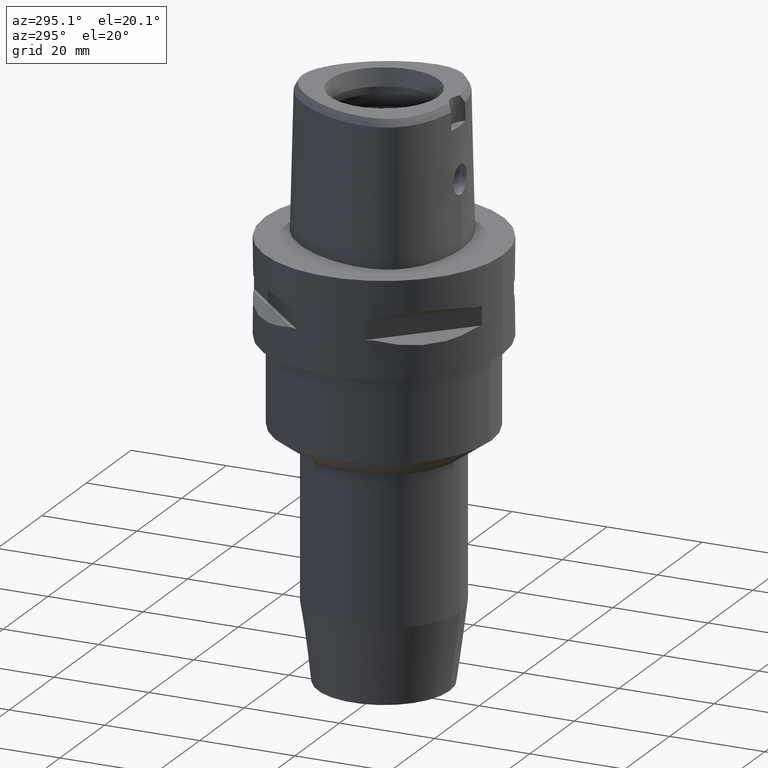
[diagram: clean part render]
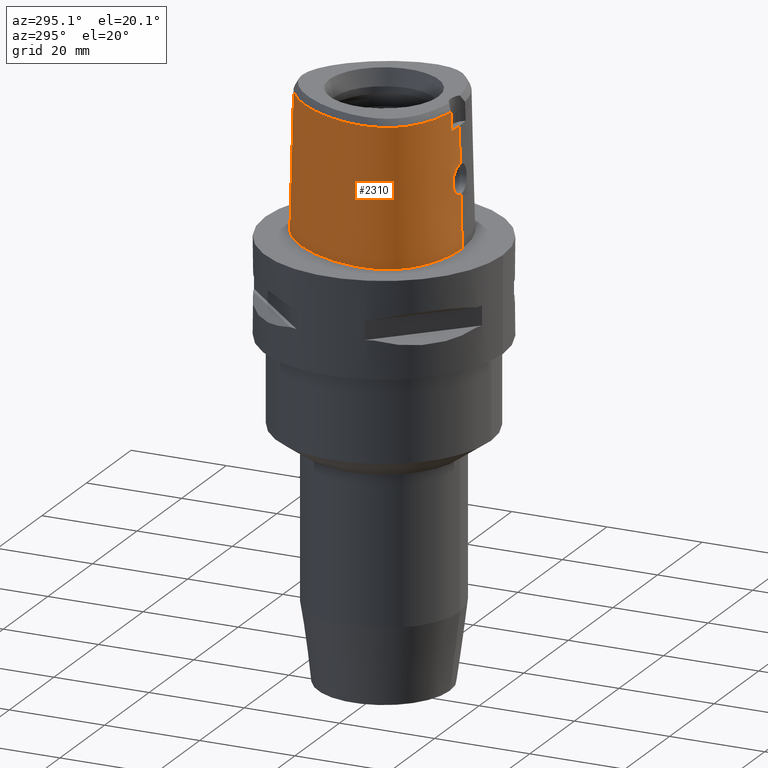
[diagram: same view with one face highlighted and labeled with its STEP entity id]
A machine part, auxiliary view. The second image highlights one B-rep face of the part: STEP entity #2310.
In plain terms, the highlighted face is a freeform B-spline surface patch.
Its self-contained STEP definition (entity closure, byte-faithful):
#185=CARTESIAN_POINT('',(-3.168920966623E0,-1.555911077539E1,2.852071192347E1));
#186=CARTESIAN_POINT('',(-3.884018424515E0,-1.547576349617E1,2.852068042717E1));
#187=CARTESIAN_POINT('',(-5.247695189909E0,-1.525826336469E1,2.852072903404E1));
#188=CARTESIAN_POINT('',(-7.068919529175E0,-1.481516736492E1,2.852071237294E1));
#189=CARTESIAN_POINT('',(-8.613929883140E0,-1.431004507675E1,2.852073019963E1));
#190=CARTESIAN_POINT('',(-9.995356613935E0,-1.373902700220E1,2.852071186279E1));
#191=CARTESIAN_POINT('',(-1.124982998274E1,-1.309688046516E1,2.852071937654E1));
#192=CARTESIAN_POINT('',(-1.238711608372E1,-1.238104996002E1,2.852071750255E1));
#193=CARTESIAN_POINT('',(-1.336108389170E1,-1.162936731246E1,2.852072164498E1));
#194=CARTESIAN_POINT('',(-1.417450314764E1,-1.086425323022E1,2.852072209935E1));
#195=CARTESIAN_POINT('',(-1.485394147480E1,-1.008281603057E1,2.852069333345E1));
#196=CARTESIAN_POINT('',(-1.541186317733E1,-9.290473508141E0,2.852074843830E1));
#197=CARTESIAN_POINT('',(-1.587337708806E1,-8.462915439459E0,2.852071991258E1));
#198=CARTESIAN_POINT('',(-1.626140134066E1,-7.557337614524E0,2.852071163513E1));
#199=CARTESIAN_POINT('',(-1.657667771845E1,-6.548498503859E0,2.852071897347E1));
#200=CARTESIAN_POINT('',(-1.680798800989E1,-5.428019071697E0,2.852071891157E1));
#201=CARTESIAN_POINT('',(-1.694253977910E1,-4.169586378050E0,2.852072184503E1));
#202=CARTESIAN_POINT('',(-1.695949206263E1,-2.802998814675E0,2.852071756393E1));
#203=CARTESIAN_POINT('',(-1.685344435E1,-1.375161839891E0,2.852071128356E1));
#204=CARTESIAN_POINT('',(-1.662096442905E1,1.267079546153E-1,2.852072422836E1));
#205=CARTESIAN_POINT('',(-1.624049462060E1,1.762577795572E0,2.852072177717E1));
#206=CARTESIAN_POINT('',(-1.564670362716E1,3.634253181313E0,2.852069903337E1));
#207=CARTESIAN_POINT('',(-1.483751327191E1,5.603489300116E0,2.852072652030E1));
#208=CARTESIAN_POINT('',(-1.384825157337E1,7.550865350083E0,2.852068894743E1));
#209=CARTESIAN_POINT('',(-1.270048005534E1,9.425038874084E0,2.852072872519E1));
#210=CARTESIAN_POINT('',(-1.143486269483E1,1.116436229673E1,2.852071245700E1));
#211=CARTESIAN_POINT('',(-1.010132644102E1,1.271225842705E1,2.852072030872E1));
#212=CARTESIAN_POINT('',(-8.842378725687E0,1.395492710839E1,2.852071211598E1));
#213=CARTESIAN_POINT('',(-7.654868319508E0,1.496335772709E1,2.852072067069E1));
#214=CARTESIAN_POINT('',(-6.463517638644E0,1.582517546606E1,2.852071712933E1));
#215=CARTESIAN_POINT('',(-5.272808361515E0,1.654168821671E1,2.852072805240E1));
#216=CARTESIAN_POINT('',(-4.105550930552E0,1.710690949129E1,2.852071405181E1));
#217=CARTESIAN_POINT('',(-2.992312216150E0,1.751912247566E1,2.852072610469E1));
#218=CARTESIAN_POINT('',(-1.943886603984E0,1.779364421749E1,2.852074324146E1));
#219=CARTESIAN_POINT('',(-9.440104920872E-1,1.794938959237E1,2.852060108563E1));
#220=CARTESIAN_POINT('',(-3.160365891633E-1,1.798202997910E1,2.852071728568E1));
#221=CARTESIAN_POINT('',(-3.033118856553E-11,1.798202997910E1,
2.852071728569E1));
#233=CARTESIAN_POINT('',(-3.168920966623E0,-1.555911077539E1,2.852071192347E1));
#234=CARTESIAN_POINT('',(-3.176474039100E0,-1.556891666509E1,2.809611645937E1));
#235=CARTESIAN_POINT('',(-3.191280249308E0,-1.558832444513E1,2.724696144168E1));
#236=CARTESIAN_POINT('',(-3.213330813519E0,-1.561778410051E1,2.597339362925E1));
#237=CARTESIAN_POINT('',(-3.227943724850E0,-1.563768160294E1,2.512445079602E1));
#238=CARTESIAN_POINT('',(-3.235096612069E0,-1.564751802487E1,2.47E1));
#243=DIRECTION('',(-2.653059685059E-8,-2.499217453618E-2,-9.996876468237E-1));
#244=VECTOR('',#243,7.652390309446E0);
#245=CARTESIAN_POINT('',(2.030224829794E-7,-1.583752876601E1,2.470000006103E1));
#246=LINE('',#245,#244);
#250=CARTESIAN_POINT('',(0.E0,-1.602877864024E1,1.705E1));
#251=CARTESIAN_POINT('',(-2.659945477313E-1,-1.602877864024E1,1.705E1));
#252=CARTESIAN_POINT('',(-7.981539054079E-1,-1.602276557434E1,
1.697998778210E1));
#253=CARTESIAN_POINT('',(-1.542337742672E0,-1.599859727103E1,1.667189267474E1));
#254=CARTESIAN_POINT('',(-2.182298091955E0,-1.596711682406E1,1.618082016301E1));
#255=CARTESIAN_POINT('',(-2.673120543223E0,-1.593921850387E1,1.554028257757E1));
#256=CARTESIAN_POINT('',(-2.980687782776E0,-1.592573160843E1,1.479556193386E1));
#257=CARTESIAN_POINT('',(-3.084822898489E0,-1.593407648873E1,1.399796112571E1));
#258=CARTESIAN_POINT('',(-2.980017946408E0,-1.596586743653E1,1.320269542640E1));
#259=CARTESIAN_POINT('',(-2.672701220911E0,-1.601665099738E1,1.245917485553E1));
#260=CARTESIAN_POINT('',(-2.182455128889E0,-1.607648409626E1,1.181929354118E1));
#261=CARTESIAN_POINT('',(-1.541258646605E0,-1.613247596370E1,1.132732424473E1));
#262=CARTESIAN_POINT('',(-7.963106898855E-1,-1.617186122197E1,
1.101956686934E1));
#263=CARTESIAN_POINT('',(-2.651805195319E-1,-1.618126839359E1,1.095E1));
#264=CARTESIAN_POINT('',(-2.337332731629E-12,-1.618126839359E1,1.095E1));
#269=DIRECTION('',(-1.501671840209E-12,-2.499051295372E-2,-9.996876883619E-1));
#270=VECTOR('',#269,1.095342088082E1);
#271=CARTESIAN_POINT('',(-2.337332731629E-12,-1.618126839359E1,1.095E1));
#272=LINE('',#271,#270);
#334=CARTESIAN_POINT('',(7.755985120876E-11,1.869499999998E1,
1.702341971092E-13));
#335=CARTESIAN_POINT('',(-3.295759186931E-1,1.869499999998E1,
1.702341971092E-13));
#336=CARTESIAN_POINT('',(-1.002941795035E0,1.866091233063E1,
-7.900596583005E-14));
#337=CARTESIAN_POINT('',(-2.051732925927E0,1.849989913349E1,
2.116958474140E-14));
#338=CARTESIAN_POINT('',(-3.151016817687E0,1.821705721996E1,0.E0));
#339=CARTESIAN_POINT('',(-4.305903382544E0,1.779667629778E1,0.E0));
#340=CARTESIAN_POINT('',(-5.520827674724E0,1.721944707481E1,0.E0));
#341=CARTESIAN_POINT('',(-6.795867983990E0,1.646356234537E1,0.E0));
#342=CARTESIAN_POINT('',(-8.124582525850E0,1.550731834414E1,0.E0));
#343=CARTESIAN_POINT('',(-9.491675783515E0,1.433284227771E1,0.E0));
#344=CARTESIAN_POINT('',(-1.086945255546E1,1.293333260558E1,0.E0));
#345=CARTESIAN_POINT('',(-1.221944110055E1,1.131788308487E1,0.E0));
#346=CARTESIAN_POINT('',(-1.349253657379E1,9.519855402023E0,0.E0));
#347=CARTESIAN_POINT('',(-1.463965089053E1,7.592770024477E0,0.E0));
#348=CARTESIAN_POINT('',(-1.562233731693E1,5.598375856198E0,0.E0));
#349=CARTESIAN_POINT('',(-1.641389016506E1,3.606034768388E0,0.E0));
#350=CARTESIAN_POINT('',(-1.700401205855E1,1.679814926123E0,0.E0));
#351=CARTESIAN_POINT('',(-1.739956074894E1,-1.352982755759E-1,0.E0));
#352=CARTESIAN_POINT('',(-1.761806726740E1,-1.812956980727E0,0.E0));
#353=CARTESIAN_POINT('',(-1.768210655685E1,-3.344559877090E0,0.E0));
#354=CARTESIAN_POINT('',(-1.761432762350E1,-4.731965011588E0,0.E0));
#355=CARTESIAN_POINT('',(-1.743477761552E1,-5.984854138534E0,0.E0));
#356=CARTESIAN_POINT('',(-1.715975078674E1,-7.115992938261E0,0.E0));
#357=CARTESIAN_POINT('',(-1.679976177308E1,-8.141029809616E0,0.E0));
#358=CARTESIAN_POINT('',(-1.636704456147E1,-9.064438463957E0,0.E0));
#359=CARTESIAN_POINT('',(-1.585200386670E1,-9.922103224333E0,0.E0));
#360=CARTESIAN_POINT('',(-1.523087197253E1,-1.075232462852E1,0.E0));
#361=CARTESIAN_POINT('',(-1.447948051682E1,-1.157113099391E1,0.E0));
#362=CARTESIAN_POINT('',(-1.358925530666E1,-1.236773986121E1,0.E0));
#363=CARTESIAN_POINT('',(-1.253889987658E1,-1.314117755696E1,0.E0));
#364=CARTESIAN_POINT('',(-1.130992361527E1,-1.388138756268E1,0.E0));
#365=CARTESIAN_POINT('',(-9.884823482977E0,-1.457412199330E1,0.E0));
#366=CARTESIAN_POINT('',(-8.253027961528E0,-1.519886051434E1,0.E0));
#367=CARTESIAN_POINT('',(-6.415740149371E0,-1.572979209410E1,0.E0));
#368=CARTESIAN_POINT('',(-4.395375053772E0,-1.613808320054E1,
2.131685141787E-14));
#369=CARTESIAN_POINT('',(-2.229510005853E0,-1.639614206733E1,
-7.955557254887E-14));
#370=CARTESIAN_POINT('',(-7.522639795559E-1,-1.6455E1,1.714184350021E-13));
#371=CARTESIAN_POINT('',(-1.878577642231E-11,-1.6455E1,1.714184350021E-13));
#1033=DIRECTION('',(3.781719199653E-12,2.499051285786E-2,-9.996876883643E-1));
#1034=VECTOR('',#1033,2.852962742029E1);
#1035=CARTESIAN_POINT('',(-3.033118856553E-11,1.798202997910E1,
2.852071728569E1));
#1036=LINE('',#1035,#1034);
#1050=CARTESIAN_POINT('',(2.030224829794E-7,-1.583752876601E1,
2.470000006103E1));
#1051=CARTESIAN_POINT('',(-3.604657533404E-1,-1.583752876587E1,
2.470000006103E1));
#1052=CARTESIAN_POINT('',(-1.080736565087E0,-1.582371258234E1,
2.469999997152E1));
#1053=CARTESIAN_POINT('',(-2.160152508818E0,-1.576019554973E1,
2.470000000814E1));
#1054=CARTESIAN_POINT('',(-2.877122210813E0,-1.568999562894E1,2.47E1));
#1055=CARTESIAN_POINT('',(-3.235096612069E0,-1.564751802487E1,2.47E1));
#1531=CARTESIAN_POINT('',(-3.235121119989E0,-1.564755630482E1,2.47E1));
#1532=VERTEX_POINT('',#1531);
#1533=VERTEX_POINT('',#233);
#1534=CARTESIAN_POINT('',(-3.033118856553E-11,1.798202997910E1,
2.852071728569E1));
#1535=VERTEX_POINT('',#1534);
#1536=VERTEX_POINT('',#334);
#1537=VERTEX_POINT('',#371);
#1538=VERTEX_POINT('',#1050);
#1539=CARTESIAN_POINT('',(0.E0,-1.602877864024E1,1.705E1));
#1540=VERTEX_POINT('',#1539);
#1541=VERTEX_POINT('',#264);
#2197=CARTESIAN_POINT('',(5.756361491499E-1,1.869183960019E1,
-5.704147011234E-1));
#2198=CARTESIAN_POINT('',(5.606135746986E-1,1.844514041257E1,9.316773451682E0));
#2199=CARTESIAN_POINT('',(5.455910002473E-1,1.819844122495E1,1.920396160449E1));
#2200=CARTESIAN_POINT('',(5.305684257960E-1,1.795174203734E1,2.909114975729E1));
#2201=CARTESIAN_POINT('',(3.838142946343E-1,1.870350312524E1,
-5.704147011234E-1));
#2202=CARTESIAN_POINT('',(3.738602555951E-1,1.845648975998E1,9.316773451682E0));
#2203=CARTESIAN_POINT('',(3.639062165559E-1,1.820947639473E1,1.920396160449E1));
#2204=CARTESIAN_POINT('',(3.539521775167E-1,1.796246302947E1,2.909114975729E1));
#2205=CARTESIAN_POINT('',(-4.893119563665E-1,1.872969240792E1,
-5.704147011234E-1));
#2206=CARTESIAN_POINT('',(-4.764648007791E-1,1.848199781702E1,
9.316773451682E0));
#2207=CARTESIAN_POINT('',(-4.636176451918E-1,1.823430322612E1,
1.920396160449E1));
#2208=CARTESIAN_POINT('',(-4.507704896044E-1,1.798660863521E1,
2.909114975729E1));
#2209=CARTESIAN_POINT('',(-2.043508293078E0,1.856419796995E1,
-5.704147011234E-1));
#2210=CARTESIAN_POINT('',(-1.992618745946E0,1.832080815735E1,9.316773451682E0));
#2211=CARTESIAN_POINT('',(-1.941729198814E0,1.807741834474E1,1.920396160449E1));
#2212=CARTESIAN_POINT('',(-1.890839651682E0,1.783402853214E1,2.909114975729E1));
#2213=CARTESIAN_POINT('',(-4.735056264676E0,1.774784407941E1,
-5.704147011234E-1));
#2214=CARTESIAN_POINT('',(-4.628819261772E0,1.752182795300E1,9.316773451682E0));
#2215=CARTESIAN_POINT('',(-4.522582258867E0,1.729581182660E1,1.920396160449E1));
#2216=CARTESIAN_POINT('',(-4.416345255963E0,1.706979570019E1,2.909114975729E1));
#2217=CARTESIAN_POINT('',(-7.976721801682E0,1.584201698617E1,
-5.704147011234E-1));
#2218=CARTESIAN_POINT('',(-7.822764752431E0,1.564591005915E1,9.316773451682E0));
#2219=CARTESIAN_POINT('',(-7.668807703181E0,1.544980313212E1,1.920396160449E1));
#2220=CARTESIAN_POINT('',(-7.514850653931E0,1.525369620510E1,2.909114975729E1));
#2221=CARTESIAN_POINT('',(-1.147659488512E1,1.246143684855E1,
-5.704147011234E-1));
#2222=CARTESIAN_POINT('',(-1.128662493375E1,1.230111480698E1,9.316773451682E0));
#2223=CARTESIAN_POINT('',(-1.109665498237E1,1.214079276541E1,1.920396160449E1));
#2224=CARTESIAN_POINT('',(-1.090668503100E1,1.198047072383E1,2.909114975729E1));
#2225=CARTESIAN_POINT('',(-1.439249255229E1,8.309508948750E0,
-5.704147011234E-1));
#2226=CARTESIAN_POINT('',(-1.417736239213E1,8.185312170404E0,9.316773451682E0));
#2227=CARTESIAN_POINT('',(-1.396223223196E1,8.061115392059E0,1.920396160449E1));
#2228=CARTESIAN_POINT('',(-1.374710207180E1,7.936918613713E0,2.909114975729E1));
#2229=CARTESIAN_POINT('',(-1.653021708581E1,3.708305584516E0,
-5.704147011234E-1));
#2230=CARTESIAN_POINT('',(-1.629641056024E1,3.623925452902E0,9.316773451682E0));
#2231=CARTESIAN_POINT('',(-1.606260403466E1,3.539545321289E0,1.920396160449E1));
#2232=CARTESIAN_POINT('',(-1.582879750909E1,3.455165189675E0,2.909114975729E1));
#2233=CARTESIAN_POINT('',(-1.751166498553E1,-2.260900528543E-1,
-5.704147011234E-1));
#2234=CARTESIAN_POINT('',(-1.726695536966E1,-2.694874700460E-1,
9.316773451682E0));
#2235=CARTESIAN_POINT('',(-1.702224575379E1,-3.128848872377E-1,
1.920396160449E1));
#2236=CARTESIAN_POINT('',(-1.677753613792E1,-3.562823044293E-1,
2.909114975729E1));
#2237=CARTESIAN_POINT('',(-1.772574106021E1,-3.269125760294E0,
-5.704147011234E-1));
#2238=CARTESIAN_POINT('',(-1.747781018046E1,-3.270737581873E0,
9.316773451682E0));
#2239=CARTESIAN_POINT('',(-1.722987930071E1,-3.272349403451E0,
1.920396160449E1));
#2240=CARTESIAN_POINT('',(-1.698194842096E1,-3.273961225030E0,
2.909114975729E1));
#2241=CARTESIAN_POINT('',(-1.757791639726E1,-5.458025465920E0,
-5.704147011234E-1));
#2242=CARTESIAN_POINT('',(-1.733218228642E1,-5.422849681645E0,
9.316773451682E0));
#2243=CARTESIAN_POINT('',(-1.708644817558E1,-5.387673897370E0,
1.920396160449E1));
#2244=CARTESIAN_POINT('',(-1.684071406474E1,-5.352498113096E0,
2.909114975729E1));
#2245=CARTESIAN_POINT('',(-1.717866842938E1,-7.169980044632E0,
-5.704147011234E-1));
#2246=CARTESIAN_POINT('',(-1.694089129548E1,-7.099401458502E0,
9.316773451682E0));
#2247=CARTESIAN_POINT('',(-1.670311416158E1,-7.028822872372E0,
1.920396160449E1));
#2248=CARTESIAN_POINT('',(-1.646533702768E1,-6.958244286242E0,
2.909114975729E1));
#2249=CARTESIAN_POINT('',(-1.668217932131E1,-8.451606616761E0,
-5.704147011234E-1));
#2250=CARTESIAN_POINT('',(-1.645596372282E1,-8.350972134583E0,
9.316773451682E0));
#2251=CARTESIAN_POINT('',(-1.622974812434E1,-8.250337652406E0,
1.920396160449E1));
#2252=CARTESIAN_POINT('',(-1.600353252586E1,-8.149703170229E0,
2.909114975729E1));
#2253=CARTESIAN_POINT('',(-1.621839714800E1,-9.363695959238E0,
-5.704147011234E-1));
#2254=CARTESIAN_POINT('',(-1.600394172314E1,-9.239880061607E0,
9.316773451682E0));
#2255=CARTESIAN_POINT('',(-1.578948629828E1,-9.116064163976E0,
1.920396160449E1));
#2256=CARTESIAN_POINT('',(-1.557503087343E1,-8.992248266346E0,
2.909114975729E1));
#2257=CARTESIAN_POINT('',(-1.566039569370E1,-1.022138777436E1,
-5.704147011234E-1));
#2258=CARTESIAN_POINT('',(-1.546013587400E1,-1.007579656049E1,
9.316773451682E0));
#2259=CARTESIAN_POINT('',(-1.525987605430E1,-9.930205346614E0,
1.920396160449E1));
#2260=CARTESIAN_POINT('',(-1.505961623460E1,-9.784614132743E0,
2.909114975729E1));
#2261=CARTESIAN_POINT('',(-1.479871907721E1,-1.129217324069E1,
-5.704147011234E-1));
#2262=CARTESIAN_POINT('',(-1.461870767487E1,-1.112154149574E1,
9.316773451682E0));
#2263=CARTESIAN_POINT('',(-1.443869627252E1,-1.095090975079E1,
1.920396160449E1));
#2264=CARTESIAN_POINT('',(-1.425868487018E1,-1.078027800584E1,
2.909114975729E1));
#2265=CARTESIAN_POINT('',(-1.351574691276E1,-1.249390941289E1,
-5.704147011234E-1));
#2266=CARTESIAN_POINT('',(-1.336241662812E1,-1.229868531874E1,
9.316773451682E0));
#2267=CARTESIAN_POINT('',(-1.320908634347E1,-1.210346122460E1,
1.920396160449E1));
#2268=CARTESIAN_POINT('',(-1.305575605883E1,-1.190823713045E1,
2.909114975729E1));
#2269=CARTESIAN_POINT('',(-1.169401646426E1,-1.371637917812E1,
-5.704147011234E-1));
#2270=CARTESIAN_POINT('',(-1.157144729152E1,-1.350085884076E1,
9.316773451682E0));
#2271=CARTESIAN_POINT('',(-1.144887811877E1,-1.328533850340E1,
1.920396160449E1));
#2272=CARTESIAN_POINT('',(-1.132630894602E1,-1.306981816603E1,
2.909114975729E1));
#2273=CARTESIAN_POINT('',(-8.951632340965E0,-1.505250171779E1,
-5.704147011234E-1));
#2274=CARTESIAN_POINT('',(-8.866858738102E0,-1.481887819275E1,
9.316773451682E0));
#2275=CARTESIAN_POINT('',(-8.782085135239E0,-1.458525466771E1,
1.920396160449E1));
#2276=CARTESIAN_POINT('',(-8.697311532375E0,-1.435163114267E1,
2.909114975729E1));
#2277=CARTESIAN_POINT('',(-5.053620743878E0,-1.616974068492E1,
-5.704147011234E-1));
#2278=CARTESIAN_POINT('',(-5.009809421250E0,-1.592506881297E1,
9.316773451682E0));
#2279=CARTESIAN_POINT('',(-4.965998098621E0,-1.568039694102E1,
1.920396160449E1));
#2280=CARTESIAN_POINT('',(-4.922186775993E0,-1.543572506906E1,
2.909114975729E1));
#2281=CARTESIAN_POINT('',(-1.321318947069E0,-1.650155084625E1,
-5.704147011234E-1));
#2282=CARTESIAN_POINT('',(-1.309813751871E0,-1.625411916923E1,
9.316773451682E0));
#2283=CARTESIAN_POINT('',(-1.298308556674E0,-1.600668749220E1,
1.920396160449E1));
#2284=CARTESIAN_POINT('',(-1.286803361476E0,-1.575925581518E1,
2.909114975729E1));
#2285=CARTESIAN_POINT('',(7.264497205494E-1,-1.646229666004E1,
-5.704147011234E-1));
#2286=CARTESIAN_POINT('',(7.201291705555E-1,-1.621519147664E1,
9.316773451682E0));
#2287=CARTESIAN_POINT('',(7.138086205616E-1,-1.596808629324E1,
1.920396160449E1));
#2288=CARTESIAN_POINT('',(7.074880705677E-1,-1.572098110984E1,
2.909114975729E1));
#2289=CARTESIAN_POINT('',(1.089046662277E0,-1.644835921925E1,
-5.704147011234E-1));
#2290=CARTESIAN_POINT('',(1.079551361078E0,-1.620136643908E1,9.316773451682E0));
#2291=CARTESIAN_POINT('',(1.070056059880E0,-1.595437365891E1,1.920396160449E1));
#2292=CARTESIAN_POINT('',(1.060560758681E0,-1.570738087873E1,2.909114975729E1));
#2293=B_SPLINE_SURFACE_WITH_KNOTS('',3,3,((#2197,#2198,#2199,#2200),(#2201,
#2202,#2203,#2204),(#2205,#2206,#2207,#2208),(#2209,#2210,#2211,#2212),(#2213,
#2214,#2215,#2216),(#2217,#2218,#2219,#2220),(#2221,#2222,#2223,#2224),(#2225,
#2226,#2227,#2228),(#2229,#2230,#2231,#2232),(#2233,#2234,#2235,#2236),(#2237,
#2238,#2239,#2240),(#2241,#2242,#2243,#2244),(#2245,#2246,#2247,#2248),(#2249,
#2250,#2251,#2252),(#2253,#2254,#2255,#2256),(#2257,#2258,#2259,#2260),(#2261,
#2262,#2263,#2264),(#2265,#2266,#2267,#2268),(#2269,#2270,#2271,#2272),(#2273,
#2274,#2275,#2276),(#2277,#2278,#2279,#2280),(#2281,#2282,#2283,#2284),(#2285,
#2286,#2287,#2288),(#2289,#2290,#2291,#2292)),.UNSPECIFIED.,.F.,.F.,.F.,(4,1,1,
1,1,1,1,1,1,1,1,1,1,1,1,1,1,1,1,1,1,4),(4,4),(-1.173812893902E-2,0.E0,
4.166666666819E-2,8.333333333479E-2,1.666666666680E-1,2.500000000012E-1,
3.333333333344E-1,4.166666666677E-1,5.000000000008E-1,5.416666666675E-1,
5.833333333340E-1,6.250000000006E-1,6.458333333339E-1,6.666666666673E-1,
6.875000000005E-1,7.083333333338E-1,7.500000000005E-1,7.916666666671E-1,
8.333333333336E-1,9.166666666669E-1,1.E0,1.017968513185E0),(1.405773279034E-9,
9.999999283056E-1),.UNSPECIFIED.);
#2295=ORIENTED_EDGE('',*,*,#2294,.F.);
#2297=ORIENTED_EDGE('',*,*,#2296,.F.);
#2298=ORIENTED_EDGE('',*,*,#2190,.F.);
#2299=ORIENTED_EDGE('',*,*,#1723,.T.);
#2301=ORIENTED_EDGE('',*,*,#2300,.F.);
#2303=ORIENTED_EDGE('',*,*,#2302,.T.);
#2305=ORIENTED_EDGE('',*,*,#2304,.T.);
#2307=ORIENTED_EDGE('',*,*,#2306,.T.);
#2308=EDGE_LOOP('',(#2295,#2297,#2298,#2299,#2301,#2303,#2305,#2307));
#2309=FACE_OUTER_BOUND('',#2308,.F.);
#222=B_SPLINE_CURVE_WITH_KNOTS('',3,(#185,#186,#187,#188,#189,#190,#191,#192,
#193,#194,#195,#196,#197,#198,#199,#200,#201,#202,#203,#204,#205,#206,#207,#208,
#209,#210,#211,#212,#213,#214,#215,#216,#217,#218,#219,#220,#221),.UNSPECIFIED.,
.F.,.F.,(4,1,1,1,1,1,1,1,1,1,1,1,1,1,1,1,1,1,1,1,1,1,1,1,1,1,1,1,1,1,1,1,1,1,4),
(0.E0,2.941176470588E-2,5.882352941176E-2,8.823529411765E-2,1.176470588235E-1,
1.470588235294E-1,1.764705882353E-1,2.058823529412E-1,2.352941176471E-1,
2.647058823529E-1,2.941176470588E-1,3.235294117647E-1,3.529411764706E-1,
3.823529411765E-1,4.117647058824E-1,4.411764705882E-1,4.705882352941E-1,5.E-1,
5.294117647059E-1,5.588235294118E-1,5.882352941176E-1,6.176470588235E-1,
6.470588235294E-1,6.764705882353E-1,7.058823529412E-1,7.352941176471E-1,
7.647058823529E-1,7.941176470588E-1,8.235294117647E-1,8.529411764706E-1,
8.823529411765E-1,9.117647058824E-1,9.411764705882E-1,9.705882352941E-1,1.E0),
.UNSPECIFIED.);
#239=B_SPLINE_CURVE_WITH_KNOTS('',3,(#233,#234,#235,#236,#237,#238),
.UNSPECIFIED.,.F.,.F.,(4,1,1,4),(0.E0,3.333333333333E-1,6.666666666667E-1,1.E0),
.UNSPECIFIED.);
#265=B_SPLINE_CURVE_WITH_KNOTS('',3,(#250,#251,#252,#253,#254,#255,#256,#257,
#258,#259,#260,#261,#262,#263,#264),.UNSPECIFIED.,.F.,.F.,(4,1,1,1,1,1,1,1,1,1,
1,1,4),(0.E0,8.333333333333E-2,1.666666666667E-1,2.5E-1,3.333333333333E-1,
4.166666666667E-1,5.E-1,5.833333333333E-1,6.666666666667E-1,7.5E-1,
8.333333333333E-1,9.166666666667E-1,1.E0),.UNSPECIFIED.);
#372=B_SPLINE_CURVE_WITH_KNOTS('',3,(#334,#335,#336,#337,#338,#339,#340,#341,
#342,#343,#344,#345,#346,#347,#348,#349,#350,#351,#352,#353,#354,#355,#356,#357,
#358,#359,#360,#361,#362,#363,#364,#365,#366,#367,#368,#369,#370,#371),
.UNSPECIFIED.,.F.,.F.,(4,1,1,1,1,1,1,1,1,1,1,1,1,1,1,1,1,1,1,1,1,1,1,1,1,1,1,1,
1,1,1,1,1,1,1,4),(0.E0,2.857142857143E-2,5.714285714286E-2,8.571428571429E-2,
1.142857142857E-1,1.428571428571E-1,1.714285714286E-1,2.E-1,2.285714285714E-1,
2.571428571429E-1,2.857142857143E-1,3.142857142857E-1,3.428571428571E-1,
3.714285714286E-1,4.E-1,4.285714285714E-1,4.571428571429E-1,4.857142857143E-1,
5.142857142857E-1,5.428571428571E-1,5.714285714286E-1,6.E-1,6.285714285714E-1,
6.571428571429E-1,6.857142857143E-1,7.142857142857E-1,7.428571428571E-1,
7.714285714286E-1,8.E-1,8.285714285714E-1,8.571428571429E-1,8.857142857143E-1,
9.142857142857E-1,9.428571428571E-1,9.714285714286E-1,1.E0),.UNSPECIFIED.);
#1056=B_SPLINE_CURVE_WITH_KNOTS('',3,(#1050,#1051,#1052,#1053,#1054,#1055),
.UNSPECIFIED.,.F.,.F.,(4,1,1,4),(0.E0,3.333333333333E-1,6.666666666667E-1,1.E0),
.UNSPECIFIED.);
#1723=EDGE_CURVE('',#1533,#1532,#239,.T.);
#2190=EDGE_CURVE('',#1533,#1535,#222,.T.);
#2294=EDGE_CURVE('',#1536,#1537,#372,.T.);
#2296=EDGE_CURVE('',#1535,#1536,#1036,.T.);
#2300=EDGE_CURVE('',#1538,#1532,#1056,.T.);
#2302=EDGE_CURVE('',#1538,#1540,#246,.T.);
#2304=EDGE_CURVE('',#1540,#1541,#265,.T.);
#2306=EDGE_CURVE('',#1541,#1537,#272,.T.);
#2310=ADVANCED_FACE('',(#2309),#2293,.T.);